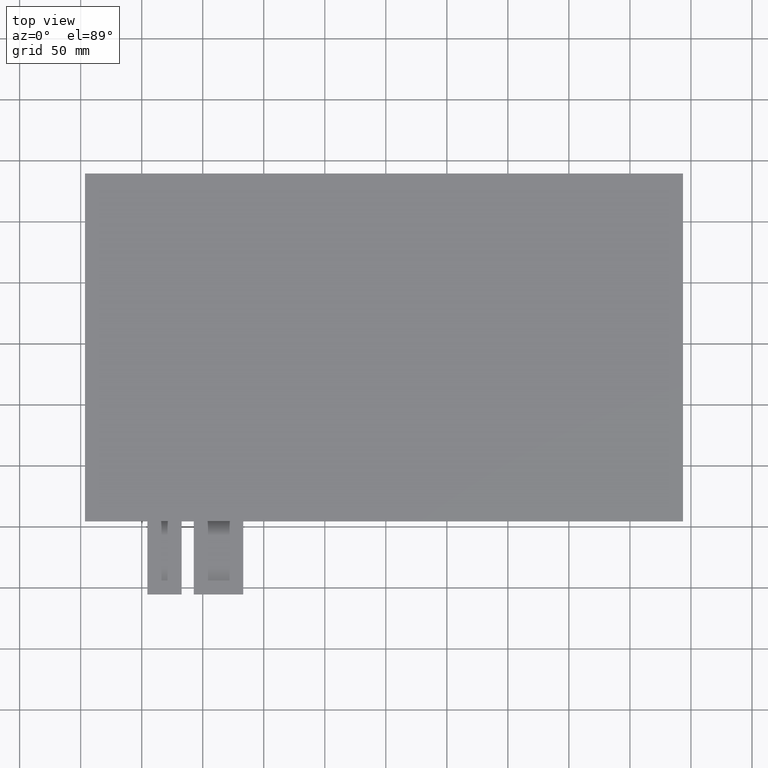
[diagram: clean part render]
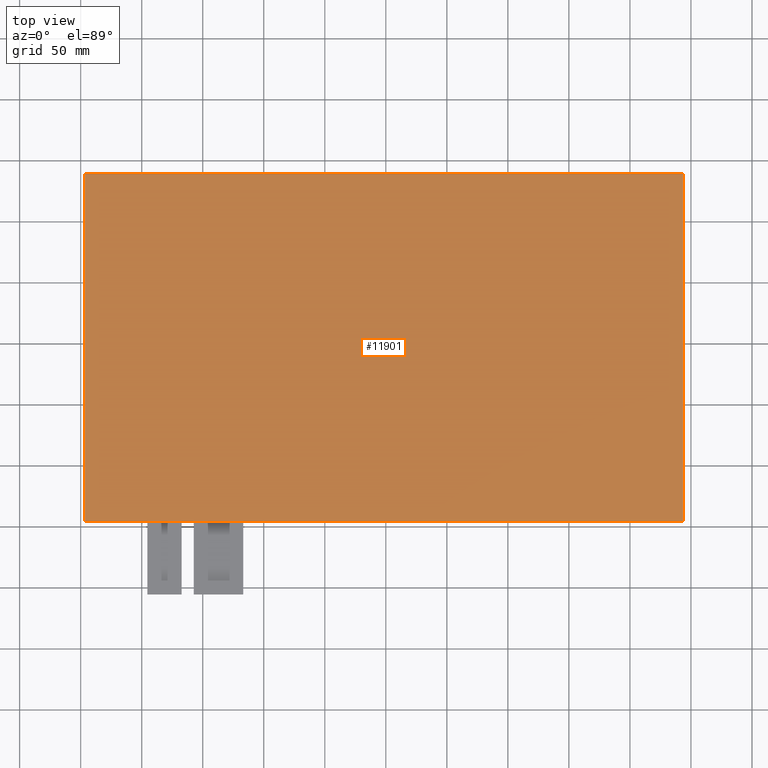
[diagram: same view with one face highlighted and labeled with its STEP entity id]
A machine part, top view. The second image highlights one B-rep face of the part: STEP entity #11901.
In plain terms, the highlighted planar face has unit normal (0, 0, 1).
Its self-contained STEP definition (entity closure, byte-faithful):
#611=PLANE('',#12497);
#1179=FACE_OUTER_BOUND('',#1749,.T.);
#1749=EDGE_LOOP('',(#11326,#11327,#11328,#11329));
#3422=LINE('',#18702,#5106);
#3426=LINE('',#18710,#5110);
#3429=LINE('',#18716,#5113);
#3432=LINE('',#18721,#5116);
#5106=VECTOR('',#15314,10.);
#5110=VECTOR('',#15320,10.);
#5113=VECTOR('',#15325,10.);
#5116=VECTOR('',#15330,10.);
#6246=VERTEX_POINT('',#18700);
#6247=VERTEX_POINT('',#18701);
#6250=VERTEX_POINT('',#18709);
#6252=VERTEX_POINT('',#18715);
#7934=EDGE_CURVE('',#6246,#6247,#3422,.T.);
#7938=EDGE_CURVE('',#6247,#6250,#3426,.T.);
#7941=EDGE_CURVE('',#6250,#6252,#3429,.T.);
#7944=EDGE_CURVE('',#6252,#6246,#3432,.T.);
#11326=ORIENTED_EDGE('',*,*,#7944,.T.);
#11327=ORIENTED_EDGE('',*,*,#7934,.T.);
#11328=ORIENTED_EDGE('',*,*,#7938,.T.);
#11329=ORIENTED_EDGE('',*,*,#7941,.T.);
#11901=ADVANCED_FACE('',(#1179),#611,.T.);
#12497=AXIS2_PLACEMENT_3D('',#18724,#15334,#15335);
#15314=DIRECTION('',(0.,1.,0.));
#15320=DIRECTION('',(-1.,0.,0.));
#15325=DIRECTION('',(3.73969860926368E-16,-1.,0.));
#15330=DIRECTION('',(1.,1.0875654118777E-16,0.));
#15334=DIRECTION('center_axis',(0.,0.,1.));
#15335=DIRECTION('ref_axis',(1.,0.,0.));
#18700=CARTESIAN_POINT('',(243.51,-145.49,0.));
#18701=CARTESIAN_POINT('',(243.51,139.51,0.));
#18702=CARTESIAN_POINT('',(243.51,-145.49,0.));
#18709=CARTESIAN_POINT('',(-246.49,139.51,0.));
#18710=CARTESIAN_POINT('',(243.51,139.51,0.));
#18715=CARTESIAN_POINT('',(-246.49,-145.49,0.));
#18716=CARTESIAN_POINT('',(-246.49,139.51,0.));
#18721=CARTESIAN_POINT('',(-246.49,-145.49,0.));
#18724=CARTESIAN_POINT('Origin',(0.,-0.00499999999997947,0.));